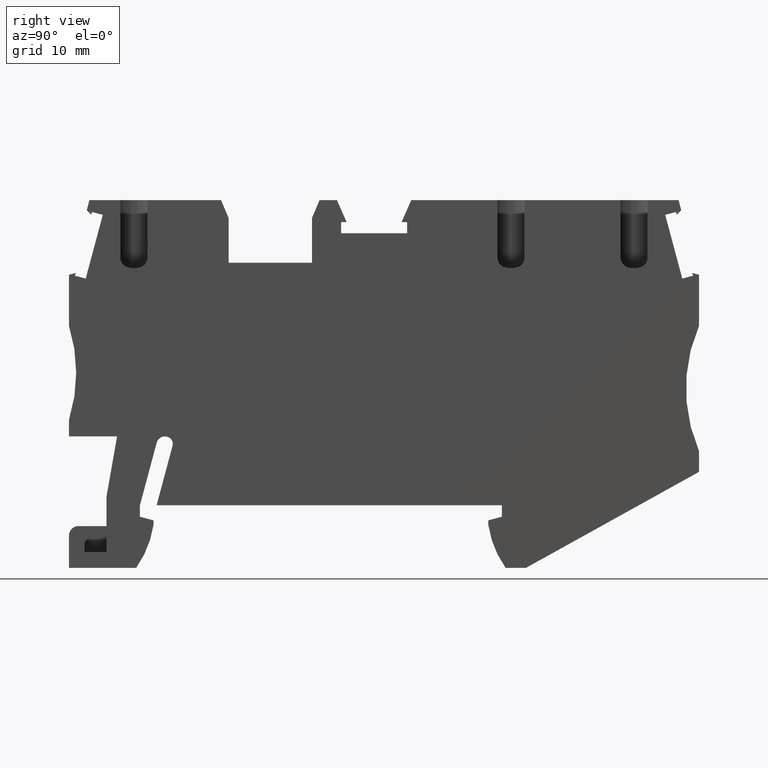
[diagram: clean part render]
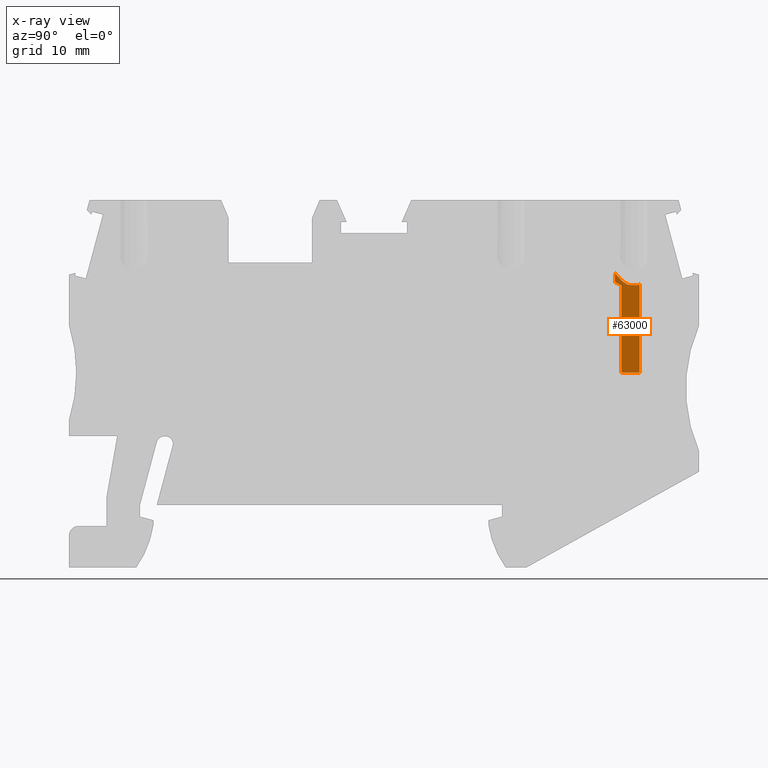
[diagram: x-ray — body ghosted, one internal face saturated and labeled with its STEP entity id]
A machine part, right view, then the same camera in x-ray: the body is ghosted and one INTERNAL B-rep face — a face not visible from any outside direction — is saturated and labeled: STEP entity #63000.
In plain terms, the highlighted planar face has unit normal (1, -0, 0).
Its self-contained STEP definition (entity closure, byte-faithful):
#4370=CARTESIAN_POINT('',(32.1071675303645,-17.2954482671897,
52.7199999999997));
#4380=VERTEX_POINT('',#4370);
#4550=CARTESIAN_POINT('',(31.5071675303947,-17.295448267189,
52.7199999999978));
#4560=VERTEX_POINT('',#4550);
#4590=CARTESIAN_POINT('',(-13.5399564696068,-17.2954482671726,
52.7199999998354));
#4600=DIRECTION('',(1.,3.96627175547337E-14,3.83877186918679E-12));
#4610=VECTOR('',#4600,1.);
#4620=LINE('',#4590,#4610);
#4630=EDGE_CURVE('',#4560,#4380,#4620,.T.);
#9100=CARTESIAN_POINT('',(29.7352386687137,-25.6999999999772,
52.7200000000007));
#9110=DIRECTION('',(-1.,-1.57721058435811E-13,-3.13117544713375E-12));
#9120=VECTOR('',#9110,1.);
#9130=LINE('',#9100,#9120);
#9140=CARTESIAN_POINT('',(32.3321675303951,-25.6999999999768,
52.720000000021));
#9150=VERTEX_POINT('',#9140);
#9160=CARTESIAN_POINT('',(30.5821675303914,-25.6999999999771,
52.7200000000034));
#9170=VERTEX_POINT('',#9160);
#9180=EDGE_CURVE('',#9150,#9170,#9130,.T.);
#12680=CARTESIAN_POINT('',(31.5071675303976,-15.6499999999819,
51.2699999999961));
#12690=DIRECTION('',(-3.76046036448341E-14,1.,-1.0101963979135E-12));
#12700=DIRECTION('',(1.,3.96627175547337E-14,3.13117544713387E-12));
#12710=AXIS2_PLACEMENT_3D('',#12680,#12690,#12700);
#12720=CONICAL_SURFACE('',#12710,2.4,0.523598775598298);
#13480=CARTESIAN_POINT('',(29.9571675304123,-16.1306466492461,
52.7199999999904));
#13490=VERTEX_POINT('',#13480);
#13520=CARTESIAN_POINT('',(32.1979112347496,-18.2999999999806,
52.720000000001));
#13530=DIRECTION('',(-3.13117544713391E-12,1.00897060708512E-12,1.));
#13540=DIRECTION('',(-1.,-3.96627175547337E-14,-3.13117544713387E-12));
#13550=AXIS2_PLACEMENT_3D('',#13520,#13530,#13540);
#13560=PLANE('',#13550);
#13570=CARTESIAN_POINT('',(29.9571675303416,-16.1306466491502,
52.7199999999918));
#13580=CARTESIAN_POINT('',(29.9829047004561,-16.1632007512314,
52.7199999999919));
#13590=CARTESIAN_POINT('',(30.00882320373,-16.1956065082111,
52.719999999992));
#13600=CARTESIAN_POINT('',(30.0349459384825,-16.2278425527362,
52.7199999999921));
#13610=CARTESIAN_POINT('',(30.0610686577937,-16.2600785782064,
52.7199999999922));
#13620=CARTESIAN_POINT('',(30.0873956168419,-16.2921450480724,
52.7199999999924));
#13630=CARTESIAN_POINT('',(30.1139540580183,-16.3240163495861,
52.7199999999925));
#13640=CARTESIAN_POINT('',(30.1405124694231,-16.3558876153725,
52.7199999999926));
#13650=CARTESIAN_POINT('',(30.1673023872407,-16.3875639312642,
52.7199999999892));
#13660=CARTESIAN_POINT('',(30.1943562150688,-16.4190139333705,
52.7199999999893));
#13670=CARTESIAN_POINT('',(30.2214081126123,-16.4504616915262,
52.7199999999894));
#13680=CARTESIAN_POINT('',(30.2487110550463,-16.4816706133719,
52.719999999993));
#13690=CARTESIAN_POINT('',(30.2764498665193,-16.5127607543976,
52.7199999999932));
#13700=CARTESIAN_POINT('',(30.3041754992649,-16.543836124477,
52.7199999999933));
#13710=CARTESIAN_POINT('',(30.3322768883636,-16.5747235620644,
52.7199999999934));
#13720=CARTESIAN_POINT('',(30.3607603797888,-16.6053210784397,
52.7199999999935));
#13730=CARTESIAN_POINT('',(30.38924396334,-16.6359186937786,
52.7199999999936));
#13740=CARTESIAN_POINT('',(30.4181095638107,-16.6662266366338,
52.7199999999938));
#13750=CARTESIAN_POINT('',(30.4473753631453,-16.696137742275,
52.7199999999939));
#13760=CARTESIAN_POINT('',(30.4766412980742,-16.7260489865001,
52.719999999994));
#13770=CARTESIAN_POINT('',(30.5063074944483,-16.7555639581429,
52.7199999999941));
#13780=CARTESIAN_POINT('',(30.5364082927765,-16.7845684690336,
52.7199999999943));
#13790=CARTESIAN_POINT('',(30.5665092111218,-16.8135730955703,
52.7199999999944));
#13800=CARTESIAN_POINT('',(30.5970450874592,-16.8420683167698,
52.7199999999945));
#13810=CARTESIAN_POINT('',(30.628070554791,-16.8699278153156,
52.7199999999946));
#13820=CARTESIAN_POINT('',(30.6590960234016,-16.8977873150097,
52.7199999999948));
#13830=CARTESIAN_POINT('',(30.6906120187324,-16.9250128997123,
52.7199999999949));
#13840=CARTESIAN_POINT('',(30.7226965881925,-16.9514563058063,
52.719999999995));
#13850=CARTESIAN_POINT('',(30.7387389705995,-16.9646780893565,
52.7199999999951));
#13860=CARTESIAN_POINT('',(30.7549240928197,-16.9777040895865,
52.7199999999951));
#13870=CARTESIAN_POINT('',(30.7712641496422,-16.9905126359664,
52.7199999999952));
#13880=CARTESIAN_POINT('',(30.7876041834743,-17.0033211643248,
52.7199999999953));
#13890=CARTESIAN_POINT('',(30.8040992398917,-17.0159123488687,
52.7199999999953));
#13900=CARTESIAN_POINT('',(30.8207629512783,-17.0282615165235,
52.7199999999954));
#13910=CARTESIAN_POINT('',(30.8374266221371,-17.0406106541439,
52.7199999999955));
#13920=CARTESIAN_POINT('',(30.8542590698278,-17.0527179066048,
52.7199999999955));
#13930=CARTESIAN_POINT('',(30.8712751274448,-17.0645548138565,
52.7199999999956));
#13940=CARTESIAN_POINT('',(30.8882911216311,-17.0763916769838,
52.7199999999957));
#13950=CARTESIAN_POINT('',(30.9054908900288,-17.0879583469988,
52.7199999999957));
#13960=CARTESIAN_POINT('',(30.9228900472677,-17.0992217088252,
52.7199999999958));
#13970=CARTESIAN_POINT('',(30.9402891124526,-17.1104850110603,
52.7199999999958));
#13980=CARTESIAN_POINT('',(30.9578877809022,-17.121445171896,
52.719999999995));
#13990=CARTESIAN_POINT('',(30.9757017931422,-17.1320635326237,
52.719999999995));
#14000=CARTESIAN_POINT('',(30.9935069440467,-17.1426766113939,
52.7199999999951));
#14010=CARTESIAN_POINT('',(31.0115618042754,-17.1529689387464,
52.7199999999891));
#14020=CARTESIAN_POINT('',(31.0298832557898,-17.1628907665858,
52.7199999999891));
#14030=CARTESIAN_POINT('',(31.0665204677874,-17.1827313403346,
52.7199999999893));
#14040=CARTESIAN_POINT('',(31.1041736983357,-17.2010573398164,
52.7199999999965));
#14050=CARTESIAN_POINT('',(31.1426705815304,-17.2173130724691,
52.7199999999966));
#14060=CARTESIAN_POINT('',(31.1619185460021,-17.2254407373239,
52.7199999999967));
#14070=CARTESIAN_POINT('',(31.1813760581768,-17.2330508728179,
52.7199999999967));
#14080=CARTESIAN_POINT('',(31.2010177011809,-17.2400789055899,
52.7199999999968));
#14090=CARTESIAN_POINT('',(31.2206593849418,-17.2471069529453,
52.7199999999969));
#14100=CARTESIAN_POINT('',(31.2404846994621,-17.2535525819929,
52.7199999999894));
#14110=CARTESIAN_POINT('',(31.2604665745073,-17.2593575945562,
52.7199999999895));
#14120=CARTESIAN_POINT('',(31.2804485621232,-17.2651626398228,
52.7199999999896));
#14130=CARTESIAN_POINT('',(31.3005863474798,-17.2703267512988,
52.7199999999971));
#14140=CARTESIAN_POINT('',(31.3208531311488,-17.2748004627624,
52.7199999999972));
#14150=CARTESIAN_POINT('',(31.341110135643,-17.2792720155606,
52.7199999999973));
#14160=CARTESIAN_POINT('',(31.3615214961364,-17.2830613381074,
52.7199999999973));
#14170=CARTESIAN_POINT('',(31.3821401432549,-17.2861292964149,
52.7199999999974));
#14180=CARTESIAN_POINT('',(31.4027494844001,-17.2891958700371,
52.7199999999975));
#14190=CARTESIAN_POINT('',(31.4235254071594,-17.2915324608173,
52.7199999999975));
#14200=CARTESIAN_POINT('',(31.4443919307229,-17.2930957055389,
52.7199999999976));
#14210=CARTESIAN_POINT('',(31.4652582265303,-17.2946589331979,
52.7199999999977));
#14220=CARTESIAN_POINT('',(31.4862120618622,-17.2954482671708,
52.7199999999976));
#14230=CARTESIAN_POINT('',(31.5071675303862,-17.2954482671712,
52.7199999999977));
#14240=B_SPLINE_CURVE_WITH_KNOTS('',3,(#13570,#13580,#13590,#13600,
#13610,#13620,#13630,#13640,#13650,#13660,#13670,#13680,#13690,#13700,
#13710,#13720,#13730,#13740,#13750,#13760,#13770,#13780,#13790,#13800,
#13810,#13820,#13830,#13840,#13850,#13860,#13870,#13880,#13890,#13900,
#13910,#13920,#13930,#13940,#13950,#13960,#13970,#13980,#13990,#14000,
#14010,#14020,#14030,#14040,#14050,#14060,#14070,#14080,#14090,#14100,
#14110,#14120,#14130,#14140,#14150,#14160,#14170,#14180,#14190,#14200,
#14210,#14220,#14230),.UNSPECIFIED.,.F.,.F.,(4,3,3,3,3,3,3,3,3,3,3,3,3,3
,3,3,3,3,3,3,3,3,4),(0.,0.124485789438097,0.248952348363103,
0.373408625648648,0.498021056126989,0.623225928223972,0.748727454458691,
0.8742184667427,0.999477419558593,1.12439065143669,1.18671559779782,
1.24896787361383,1.31116894404152,1.37334812325078,1.43554222957579,
1.49788402053922,1.62316376447967,1.68580314718579,1.74830949285859,
1.81065054342842,1.87298838361034,1.93564263929056,1.99847694368153),
.UNSPECIFIED.);
#14250=SURFACE_CURVE('',#14240,(#12720,#13560),.CURVE_3D.);
#14260=EDGE_CURVE('',#13490,#4560,#14250,.T.);
#41920=CARTESIAN_POINT('',(32.107167530399,-15.649999999982,
51.2700000000087));
#41930=DIRECTION('',(-3.76046036448342E-14,1.,-1.13155670967637E-12));
#41940=DIRECTION('',(1.,3.96627175547337E-14,3.8387718691868E-12));
#41950=AXIS2_PLACEMENT_3D('',#41920,#41930,#41940);
#41960=CONICAL_SURFACE('',#41950,2.4,0.523598775598299);
#42860=CARTESIAN_POINT('',(32.3321675303948,-17.2653918871858,
52.7200000000115));
#42870=VERTEX_POINT('',#42860);
#42900=CARTESIAN_POINT('',(32.3321675303948,-18.2999999999806,
52.7200000000126));
#42910=DIRECTION('',(3.95933286156946E-14,-1.,1.13160032381577E-12));
#42920=VECTOR('',#42910,1.);
#42930=LINE('',#42900,#42920);
#42940=EDGE_CURVE('',#42870,#9150,#42930,.T.);
#43260=CARTESIAN_POINT('',(29.9571675303945,-16.9891562143744,
52.7199999999927));
#43270=VERTEX_POINT('',#43260);
#43300=CARTESIAN_POINT('',(29.9571675303942,-9.14999999998176,
52.7199999999847));
#43310=DIRECTION('',(3.95933286156946E-14,-1.,1.00897060708524E-12));
#43320=VECTOR('',#43310,1.);
#43330=LINE('',#43300,#43320);
#43340=EDGE_CURVE('',#13490,#43270,#43330,.T.);
#62570=ORIENTED_EDGE('',*,*,#14260,.T.);
#62580=ORIENTED_EDGE('',*,*,#43340,.F.);
#62590=CARTESIAN_POINT('',(29.7352386687146,-16.8610255263426,
52.7199999999918));
#62600=DIRECTION('',(0.866025403784434,-0.500000000000009,
3.21617445497989E-12));
#62610=VECTOR('',#62600,1.);
#62620=LINE('',#62590,#62610);
#62630=CARTESIAN_POINT('',(30.5821675303921,-17.3500001326165,
52.719999999995));
#62640=VERTEX_POINT('',#62630);
#62650=EDGE_CURVE('',#43270,#62640,#62620,.T.);
#62660=ORIENTED_EDGE('',*,*,#62650,.F.);
#62670=CARTESIAN_POINT('',(30.5821675303927,-9.14999999998107,
52.7199999999867));
#62680=DIRECTION('',(-7.69939667577546E-14,-1.,1.00897060708488E-12));
#62690=VECTOR('',#62680,1.);
#62700=LINE('',#62670,#62690);
#62710=EDGE_CURVE('',#62640,#9170,#62700,.T.);
#62720=ORIENTED_EDGE('',*,*,#62710,.F.);
#62730=ORIENTED_EDGE('',*,*,#9180,.T.);
#62740=ORIENTED_EDGE('',*,*,#42940,.T.);
#62750=CARTESIAN_POINT('',(32.1979112347499,-18.2999999999806,
52.7200000000121));
#62760=DIRECTION('',(-3.83877186918684E-12,1.13160032381562E-12,1.));
#62770=DIRECTION('',(-1.,-3.96627175547337E-14,-3.83877186918679E-12));
#62780=AXIS2_PLACEMENT_3D('',#62750,#62760,#62770);
#62790=PLANE('',#62780);
#62800=CARTESIAN_POINT('',(32.1071675303646,-17.2954482671708,
52.7200000000106));
#62810=CARTESIAN_POINT('',(32.1261541698594,-17.2954482671714,
52.7200000000107));
#62820=CARTESIAN_POINT('',(32.1451655263252,-17.2948006597078,
52.7200000000108));
#62830=CARTESIAN_POINT('',(32.1641382258066,-17.2935105153166,
52.7200000000108));
#62840=CARTESIAN_POINT('',(32.183110913988,-17.2922203716938,
52.7200000000109));
#62850=CARTESIAN_POINT('',(32.2020429981108,-17.2902878948965,
52.7200000000109));
#62860=CARTESIAN_POINT('',(32.2208725512318,-17.2877382419277,
52.720000000011));
#62870=CARTESIAN_POINT('',(32.2397022279912,-17.2851885722174,
52.7200000000111));
#62880=CARTESIAN_POINT('',(32.2584277131704,-17.2820221754179,
52.7200000000112));
#62890=CARTESIAN_POINT('',(32.2769939036594,-17.2782813960422,
52.7200000000112));
#62900=CARTESIAN_POINT('',(32.2955603451617,-17.2745405660916,
52.7200000000113));
#62910=CARTESIAN_POINT('',(32.3139662585284,-17.2702259274001,
52.7200000000114));
#62920=CARTESIAN_POINT('',(32.3321675303431,-17.2653918871858,
52.7200000000115));
#62930=B_SPLINE_CURVE_WITH_KNOTS('',3,(#62800,#62810,#62820,#62830,
#62840,#62850,#62860,#62870,#62880,#62890,#62900,#62910,#62920),
.UNSPECIFIED.,.F.,.F.,(4,3,3,3,4),(0.,0.057014590873532,
0.114052372384116,0.170974705630434,0.227642657577343),.UNSPECIFIED.);
#62940=SURFACE_CURVE('',#62930,(#41960,#62790),.CURVE_3D.);
#62950=EDGE_CURVE('',#4380,#42870,#62940,.T.);
#62960=ORIENTED_EDGE('',*,*,#62950,.T.);
#62970=ORIENTED_EDGE('',*,*,#4630,.T.);
#62980=EDGE_LOOP('',(#62970,#62960,#62740,#62730,#62720,#62660,#62580,
#62570));
#62990=FACE_OUTER_BOUND('',#62980,.T.);
#63000=ADVANCED_FACE('',(#62990),#13560,.F.);